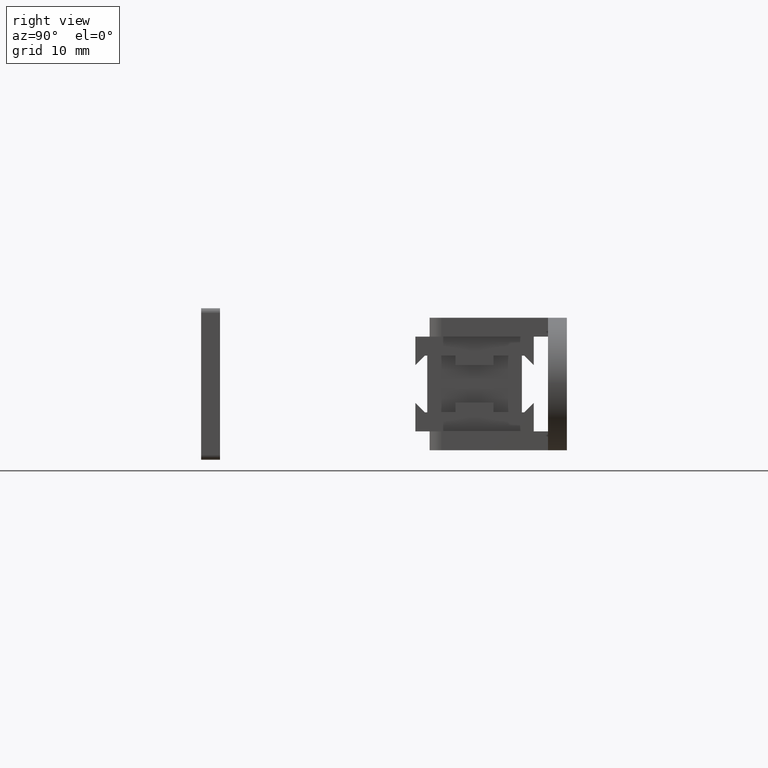
[diagram: clean part render]
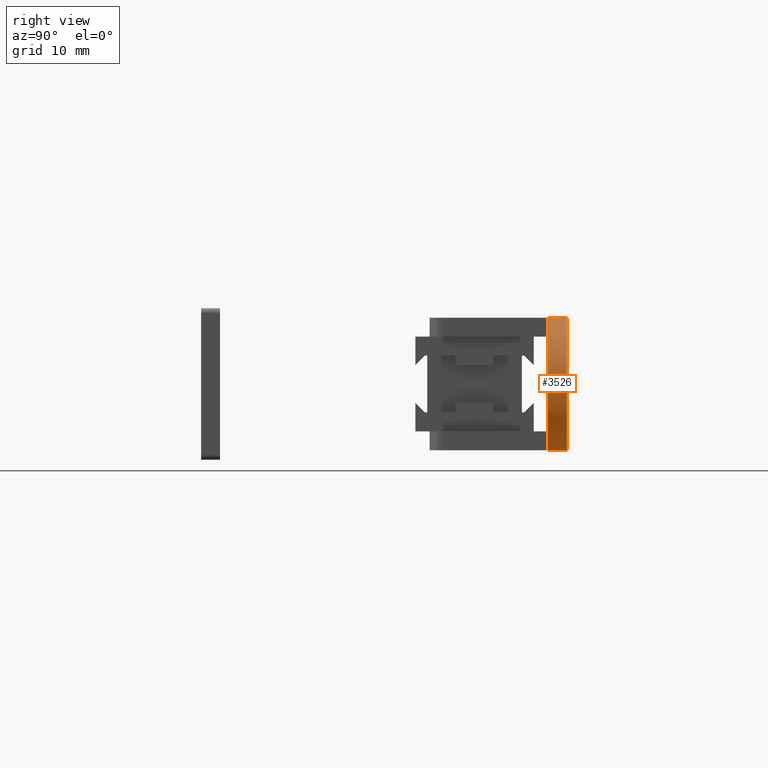
[diagram: same view with one face highlighted and labeled with its STEP entity id]
A machine part, right view. The second image highlights one B-rep face of the part: STEP entity #3526.
In plain terms, the highlighted face is a freeform B-spline surface patch.
Its self-contained STEP definition (entity closure, byte-faithful):
#3458=CARTESIAN_POINT('',(25.202140654164388,-2.049999999999775,-6.993659972439205));
#3459=CARTESIAN_POINT('',(25.202140654164388,0.051249999999994,-6.993659972439205));
#3460=CARTESIAN_POINT('',(32.507813171474844,-2.049999999999775,-7.304807904347651));
#3461=CARTESIAN_POINT('',(32.507813171474844,0.051249999999994,-7.304807904347651));
#3462=CARTESIAN_POINT('',(32.499996000000003,-2.049999999999775,0.007483313700654));
#3463=CARTESIAN_POINT('',(32.499996000000003,0.051249999999994,0.007483313700654));
#3464=CARTESIAN_POINT('',(32.492178828525162,-2.049999999999775,7.319774531748952));
#3465=CARTESIAN_POINT('',(32.492178828525162,0.051249999999994,7.319774531748952));
#3466=CARTESIAN_POINT('',(25.187188271676028,-2.049999999999775,6.993007137321026));
#3467=CARTESIAN_POINT('',(25.187188271676028,0.051249999999994,6.993007137321026));
#3475=(BOUNDED_SURFACE()B_SPLINE_SURFACE(1,2,((#3458,#3460,#3462,#3464,#3466),(#3459,#3461,#3463,#3465,#3467)),.UNSPECIFIED.,.F.,.F.,.U.)B_SPLINE_SURFACE_WITH_KNOTS((2,2),(3,2,3),(0.0,2.101249999999769),(0.0,11.957454817467649,23.914909634935299),.UNSPECIFIED.)GEOMETRIC_REPRESENTATION_ITEM()RATIONAL_B_SPLINE_SURFACE(((1.0,0.691513055782270,1.0,0.691513055782270,1.0),(1.0,0.691513055782270,1.0,0.691513055782270,1.0)))REPRESENTATION_ITEM('')SURFACE());
#3476=CARTESIAN_POINT('',(25.507483313700650,0.0,-6.999995999999999));
#3477=VERTEX_POINT('',#3476);
#3478=CARTESIAN_POINT('',(25.500000000000000,0.0,7.0));
#3479=VERTEX_POINT('',#3478);
#3480=CARTESIAN_POINT('',(25.507483313700650,0.0,-6.999996000000005));
#3481=CARTESIAN_POINT('',(32.503738657919023,0.0,-6.992516685230303));
#3482=CARTESIAN_POINT('',(32.499998999999917,0.0,0.003741657384847));
#3483=CARTESIAN_POINT('',(32.496259342080840,0.0,6.999999999999998));
#3484=CARTESIAN_POINT('',(25.500000000000000,0.0,7.0));
#3492=(BOUNDED_CURVE()B_SPLINE_CURVE(2,(#3480,#3481,#3482,#3483,#3484),.UNSPECIFIED.,.F.,.U.)B_SPLINE_CURVE_WITH_KNOTS((3,2,3),(0.0,0.500000000000000,1.0),.UNSPECIFIED.)CURVE()GEOMETRIC_REPRESENTATION_ITEM()RATIONAL_B_SPLINE_CURVE((1.0,0.707295738175889,1.0,0.707295738175889,1.0))REPRESENTATION_ITEM(''));
#3493=EDGE_CURVE('',#3477,#3479,#3492,.T.);
#3494=ORIENTED_EDGE('',*,*,#3493,.T.);
#3495=CARTESIAN_POINT('',(25.500000000000000,-1.999999999999780,7.0));
#3496=VERTEX_POINT('',#3495);
#3497=CARTESIAN_POINT('',(25.500000000000000,-1.999999999999780,7.0));
#3498=CARTESIAN_POINT('',(25.500000000000000,0.0,7.0));
#3499=QUASI_UNIFORM_CURVE('',1,(#3497,#3498),.UNSPECIFIED.,.F.,.U.);
#3500=EDGE_CURVE('',#3496,#3479,#3499,.T.);
#3501=ORIENTED_EDGE('',*,*,#3500,.F.);
#3502=CARTESIAN_POINT('',(25.507483313700650,-1.999999999999780,-6.999995999999999));
#3503=VERTEX_POINT('',#3502);
#3504=CARTESIAN_POINT('',(25.507483313700650,-1.999999999999780,-6.999996000000005));
#3505=CARTESIAN_POINT('',(32.503738657919023,-1.999999999999781,-6.992516685230303));
#3506=CARTESIAN_POINT('',(32.499998999999917,-1.999999999999780,0.003741657384847));
#3507=CARTESIAN_POINT('',(32.496259342080840,-1.999999999999781,6.999999999999998));
#3508=CARTESIAN_POINT('',(25.500000000000000,-1.999999999999780,7.0));
#3516=(BOUNDED_CURVE()B_SPLINE_CURVE(2,(#3504,#3505,#3506,#3507,#3508),.UNSPECIFIED.,.F.,.U.)B_SPLINE_CURVE_WITH_KNOTS((3,2,3),(0.0,0.500000000000000,1.0),.UNSPECIFIED.)CURVE()GEOMETRIC_REPRESENTATION_ITEM()RATIONAL_B_SPLINE_CURVE((1.0,0.707295738175889,1.0,0.707295738175889,1.0))REPRESENTATION_ITEM(''));
#3517=EDGE_CURVE('',#3503,#3496,#3516,.T.);
#3518=ORIENTED_EDGE('',*,*,#3517,.F.);
#3519=CARTESIAN_POINT('',(25.507483313700650,-1.999999999999780,-6.999995999999999));
#3520=CARTESIAN_POINT('',(25.507483313700650,0.0,-6.999995999999999));
#3521=QUASI_UNIFORM_CURVE('',1,(#3519,#3520),.UNSPECIFIED.,.F.,.U.);
#3522=EDGE_CURVE('',#3503,#3477,#3521,.T.);
#3523=ORIENTED_EDGE('',*,*,#3522,.T.);
#3524=EDGE_LOOP('',(#3494,#3501,#3518,#3523));
#3525=FACE_OUTER_BOUND('',#3524,.T.);
#3526=ADVANCED_FACE('',(#3525),#3475,.T.);